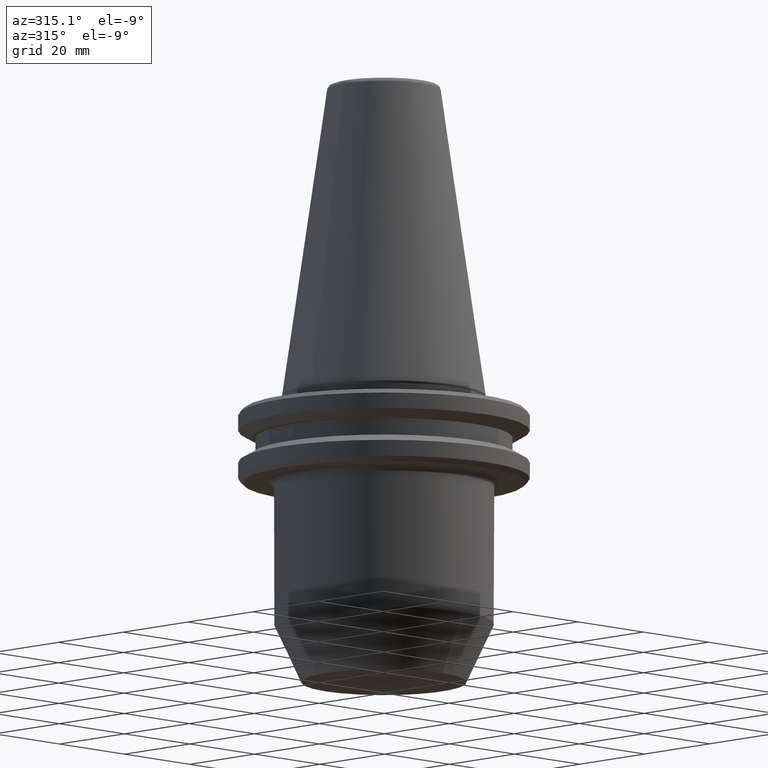
[diagram: clean part render]
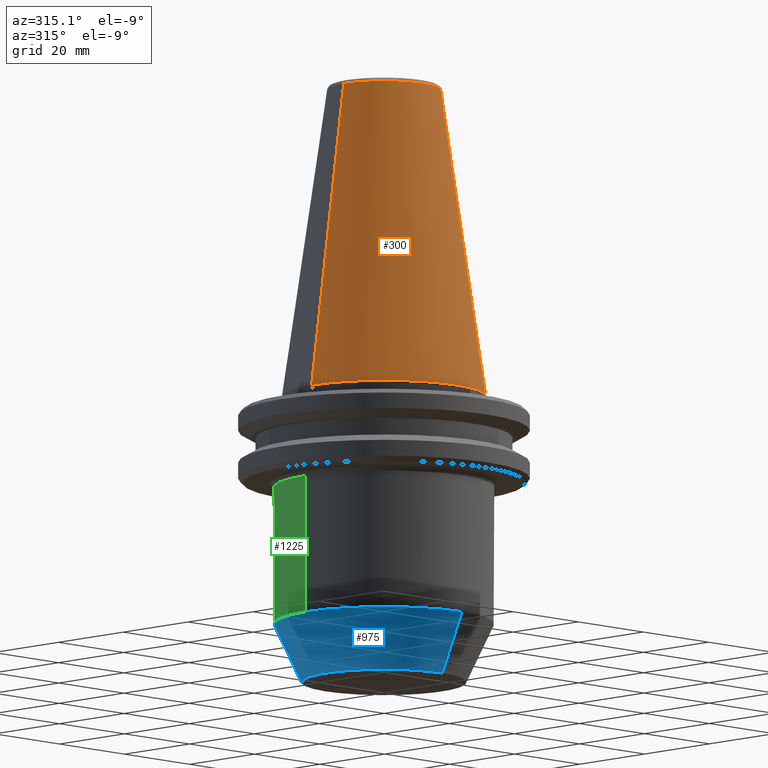
[diagram: same view with three faces highlighted in distinct colors, each labeled with its STEP entity id]
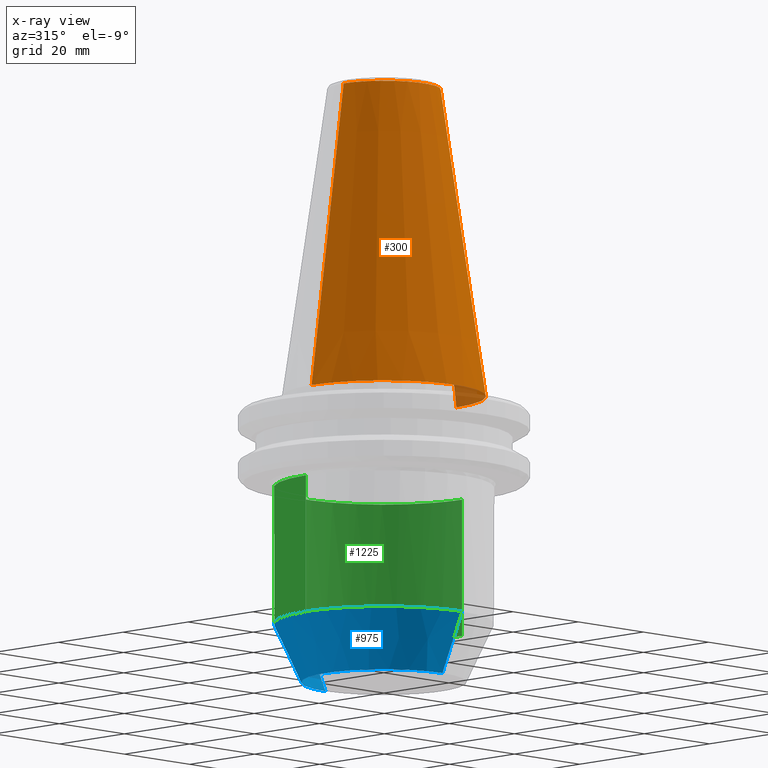
[diagram: x-ray of the same camera — body ghosted, the three highlighted faces saturated]
A machine part, auxiliary view with three faces highlighted in distinct colors.
The next image is the same camera in x-ray (body ghosted, the three faces saturated) — at least one of them is partly hidden behind the body in this view.
Their STEP definitions:

[orange] entity #300 — the highlighted conical surface has half-angle 8.297 deg.
#6 = CARTESIAN_POINT ( 'NONE',  ( 22.22500000000000100, 2.721777511104992800E-015, 0.0000000000000000000 ) ) ;
#12 = VERTEX_POINT ( 'NONE', #1183 ) ;
#39 = CARTESIAN_POINT ( 'NONE',  ( -22.22500000000000100, 0.0000000000000000000, 0.0000000000000000000 ) ) ;
#51 = ORIENTED_EDGE ( 'NONE', *, *, #715, .F. ) ;
#78 = FACE_OUTER_BOUND ( 'NONE', #559, .T. ) ;
#81 = AXIS2_PLACEMENT_3D ( 'NONE', #772, #578, #1112 ) ;
#107 = DIRECTION ( 'NONE',  ( -1.000000000000000000, 0.0000000000000000000, 6.244223985518314900E-016 ) ) ;
#160 = CARTESIAN_POINT ( 'NONE',  ( 12.37469537611110800, 2.118620309691396900E-015, 67.54430822726729400 ) ) ;
#190 = CARTESIAN_POINT ( 'NONE',  ( -22.22500000000000500, 2.721777511104993200E-015, 0.0000000000000000000 ) ) ;
#204 = ORIENTED_EDGE ( 'NONE', *, *, #1243, .T. ) ;
#230 = CARTESIAN_POINT ( 'NONE',  ( -12.37469537611110800, 0.0000000000000000000, 67.54430822726729400 ) ) ;
#294 = VECTOR ( 'NONE', #991, 1000.000000000000000 ) ;
#300 = ADVANCED_FACE ( 'NONE', ( #78 ), #805, .T. ) ;
#330 = VERTEX_POINT ( 'NONE', #230 ) ;
#387 = AXIS2_PLACEMENT_3D ( 'NONE', #708, #918, #107 ) ;
#485 = CIRCLE ( 'NONE', #1526, 12.37469537611110800 ) ;
#493 = VERTEX_POINT ( 'NONE', #160 ) ;
#559 = EDGE_LOOP ( 'NONE', ( #51, #204, #815, #1002 ) ) ;
#578 = DIRECTION ( 'NONE',  ( 0.0000000000000000000, 0.0000000000000000000, -1.000000000000000000 ) ) ;
#584 = LINE ( 'NONE', #6, #1199 ) ;
#676 = EDGE_CURVE ( 'NONE', #1398, #12, #889, .T. ) ;
#708 = CARTESIAN_POINT ( 'NONE',  ( 0.0000000000000000000, 0.0000000000000000000, 0.0000000000000000000 ) ) ;
#715 = EDGE_CURVE ( 'NONE', #493, #12, #584, .T. ) ;
#772 = CARTESIAN_POINT ( 'NONE',  ( 0.0000000000000000000, 0.0000000000000000000, 0.0000000000000000000 ) ) ;
#805 = CONICAL_SURFACE ( 'NONE', #81, 22.22500000000000100, 0.1448138465474190500 ) ;
#815 = ORIENTED_EDGE ( 'NONE', *, *, #1374, .T. ) ;
#842 = DIRECTION ( 'NONE',  ( 0.1443082272673070500, 1.767266086135363700E-017, -0.9895327864921743500 ) ) ;
#889 = CIRCLE ( 'NONE', #387, 22.22500000000000100 ) ;
#893 = DIRECTION ( 'NONE',  ( 0.0000000000000000000, 0.0000000000000000000, -1.000000000000000000 ) ) ;
#918 = DIRECTION ( 'NONE',  ( -0.0000000000000000000, -0.0000000000000000000, 1.000000000000000000 ) ) ;
#956 = CARTESIAN_POINT ( 'NONE',  ( 0.0000000000000000000, 0.0000000000000000000, 67.54430822726729400 ) ) ;
#991 = DIRECTION ( 'NONE',  ( -0.1443082272673070500, 0.0000000000000000000, -0.9895327864921743500 ) ) ;
#1002 = ORIENTED_EDGE ( 'NONE', *, *, #676, .T. ) ;
#1112 = DIRECTION ( 'NONE',  ( -1.000000000000000000, 0.0000000000000000000, 0.0000000000000000000 ) ) ;
#1183 = CARTESIAN_POINT ( 'NONE',  ( 22.22500000000000500, 0.0000000000000000000, 0.0000000000000000000 ) ) ;
#1199 = VECTOR ( 'NONE', #842, 1000.000000000000000 ) ;
#1239 = DIRECTION ( 'NONE',  ( -1.000000000000000000, 0.0000000000000000000, 0.0000000000000000000 ) ) ;
#1243 = EDGE_CURVE ( 'NONE', #493, #330, #485, .T. ) ;
#1374 = EDGE_CURVE ( 'NONE', #330, #1398, #1579, .T. ) ;
#1398 = VERTEX_POINT ( 'NONE', #190 ) ;
#1526 = AXIS2_PLACEMENT_3D ( 'NONE', #956, #893, #1239 ) ;
#1579 = LINE ( 'NONE', #39, #294 ) ;

[blue] entity #975 — the highlighted conical surface has half-angle 25 deg.
#17 = ORIENTED_EDGE ( 'NONE', *, *, #1436, .F. ) ;
#23 = EDGE_CURVE ( 'NONE', #1286, #1153, #1443, .T. ) ;
#58 = FACE_OUTER_BOUND ( 'NONE', #275, .T. ) ;
#90 = DIRECTION ( 'NONE',  ( 5.175581015019573700E-017, 0.4226182617406923900, 0.9063077870366532700 ) ) ;
#118 = CARTESIAN_POINT ( 'NONE',  ( 0.0000000000000000000, -17.99999999999999300, -63.00000000000000000 ) ) ;
#161 = DIRECTION ( 'NONE',  ( 0.0000000000000000000, -1.445602896647339200E-016, 1.000000000000000000 ) ) ;
#195 = CIRCLE ( 'NONE', #694, 24.00000000000000000 ) ;
#216 = VECTOR ( 'NONE', #305, 1000.000000000000200 ) ;
#275 = EDGE_LOOP ( 'NONE', ( #17, #935, #1067, #856, #700 ) ) ;
#305 = DIRECTION ( 'NONE',  ( 0.0000000000000000000, -0.4226182617406926100, 0.9063077870366530500 ) ) ;
#345 = DIRECTION ( 'NONE',  ( 0.0000000000000000000, 0.0000000000000000000, 1.000000000000000000 ) ) ;
#347 = DIRECTION ( 'NONE',  ( 1.000000000000000000, 0.0000000000000000000, 0.0000000000000000000 ) ) ;
#353 = EDGE_CURVE ( 'NONE', #1193, #1153, #195, .T. ) ;
#359 = CARTESIAN_POINT ( 'NONE',  ( 0.0000000000000000000, 0.0000000000000000000, -50.13295847694237800 ) ) ;
#360 = CARTESIAN_POINT ( 'NONE',  ( 0.0000000000000000000, 0.0000000000000000000, -50.13295847694237800 ) ) ;
#377 = CIRCLE ( 'NONE', #819, 24.00000000000000000 ) ;
#398 = CARTESIAN_POINT ( 'NONE',  ( -24.00000000000000000, 2.939152317953647900E-015, -50.13295847694237800 ) ) ;
#410 = CARTESIAN_POINT ( 'NONE',  ( 2.939152317953647900E-015, 24.00000000000000000, -50.13295847694237800 ) ) ;
#477 = DIRECTION ( 'NONE',  ( 0.0000000000000000000, -1.445602896647339200E-016, 1.000000000000000000 ) ) ;
#547 = AXIS2_PLACEMENT_3D ( 'NONE', #360, #477, #1175 ) ;
#586 = EDGE_CURVE ( 'NONE', #1299, #1193, #377, .T. ) ;
#671 = CARTESIAN_POINT ( 'NONE',  ( 0.0000000000000000000, -24.00000000000000000, -50.13295847694237800 ) ) ;
#694 = AXIS2_PLACEMENT_3D ( 'NONE', #359, #345, #347 ) ;
#700 = ORIENTED_EDGE ( 'NONE', *, *, #586, .F. ) ;
#724 = DIRECTION ( 'NONE',  ( 1.000000000000000000, 0.0000000000000000000, 0.0000000000000000000 ) ) ;
#759 = VERTEX_POINT ( 'NONE', #1014 ) ;
#819 = AXIS2_PLACEMENT_3D ( 'NONE', #1562, #1209, #724 ) ;
#856 = ORIENTED_EDGE ( 'NONE', *, *, #353, .F. ) ;
#885 = CARTESIAN_POINT ( 'NONE',  ( 0.0000000000000000000, 1.860063249701368700E-015, -63.00000000000000000 ) ) ;
#935 = ORIENTED_EDGE ( 'NONE', *, *, #1312, .T. ) ;
#960 = CARTESIAN_POINT ( 'NONE',  ( 0.0000000000000000000, -24.00000000000000000, -50.13295847694237800 ) ) ;
#975 = ADVANCED_FACE ( 'NONE', ( #58 ), #1563, .T. ) ;
#997 = DIRECTION ( 'NONE',  ( 0.0000000000000000000, -1.000000000000000000, 0.0000000000000000000 ) ) ;
#1014 = CARTESIAN_POINT ( 'NONE',  ( 2.571758278209441300E-015, 18.00000000000000000, -63.00000000000000000 ) ) ;
#1067 = ORIENTED_EDGE ( 'NONE', *, *, #23, .T. ) ;
#1127 = AXIS2_PLACEMENT_3D ( 'NONE', #885, #161, #997 ) ;
#1151 = LINE ( 'NONE', #1281, #1534 ) ;
#1153 = VERTEX_POINT ( 'NONE', #960 ) ;
#1175 = DIRECTION ( 'NONE',  ( 0.0000000000000000000, -1.000000000000000000, 0.0000000000000000000 ) ) ;
#1193 = VERTEX_POINT ( 'NONE', #398 ) ;
#1209 = DIRECTION ( 'NONE',  ( 0.0000000000000000000, 0.0000000000000000000, 1.000000000000000000 ) ) ;
#1231 = CIRCLE ( 'NONE', #1127, 17.99999999999999600 ) ;
#1281 = CARTESIAN_POINT ( 'NONE',  ( 2.939152317953647900E-015, 24.00000000000000000, -50.13295847694237800 ) ) ;
#1286 = VERTEX_POINT ( 'NONE', #118 ) ;
#1299 = VERTEX_POINT ( 'NONE', #410 ) ;
#1312 = EDGE_CURVE ( 'NONE', #759, #1286, #1231, .T. ) ;
#1436 = EDGE_CURVE ( 'NONE', #759, #1299, #1151, .T. ) ;
#1443 = LINE ( 'NONE', #671, #216 ) ;
#1534 = VECTOR ( 'NONE', #90, 1000.000000000000000 ) ;
#1562 = CARTESIAN_POINT ( 'NONE',  ( 0.0000000000000000000, 0.0000000000000000000, -50.13295847694237800 ) ) ;
#1563 = CONICAL_SURFACE ( 'NONE', #547, 24.00000000000000000, 0.4363323129985748300 ) ;

[green] entity #1225 — the highlighted cylindrical surface (partial cylindrical patch) has radius 24 mm, axis along (0, 0, 1).
#53 = EDGE_CURVE ( 'NONE', #1148, #1299, #1491, .T. ) ;
#73 = EDGE_LOOP ( 'NONE', ( #1136, #716, #1549, #987, #1196, #596 ) ) ;
#75 = EDGE_CURVE ( 'NONE', #1193, #666, #1205, .T. ) ;
#148 = CYLINDRICAL_SURFACE ( 'NONE', #415, 24.00000000000000000 ) ;
#246 = CARTESIAN_POINT ( 'NONE',  ( 0.0000000000000000000, 0.0000000000000000000, 82.95681253582424100 ) ) ;
#280 = DIRECTION ( 'NONE',  ( -1.000000000000000000, 0.0000000000000000000, 0.0000000000000000000 ) ) ;
#299 = VECTOR ( 'NONE', #925, 1000.000000000000000 ) ;
#304 = DIRECTION ( 'NONE',  ( 0.0000000000000000000, 0.0000000000000000000, 1.000000000000000000 ) ) ;
#341 = CARTESIAN_POINT ( 'NONE',  ( 24.00000000000000000, 0.0000000000000000000, -20.10000000000000900 ) ) ;
#376 = DIRECTION ( 'NONE',  ( -0.0000000000000000000, -0.0000000000000000000, -1.000000000000000000 ) ) ;
#377 = CIRCLE ( 'NONE', #819, 24.00000000000000000 ) ;
#398 = CARTESIAN_POINT ( 'NONE',  ( -24.00000000000000000, 2.939152317953647900E-015, -50.13295847694237800 ) ) ;
#410 = CARTESIAN_POINT ( 'NONE',  ( 2.939152317953647900E-015, 24.00000000000000000, -50.13295847694237800 ) ) ;
#415 = AXIS2_PLACEMENT_3D ( 'NONE', #246, #1356, #961 ) ;
#462 = AXIS2_PLACEMENT_3D ( 'NONE', #1042, #304, #487 ) ;
#487 = DIRECTION ( 'NONE',  ( 1.000000000000000000, 0.0000000000000000000, 0.0000000000000000000 ) ) ;
#548 = CARTESIAN_POINT ( 'NONE',  ( 24.00000000000000000, 0.0000000000000000000, 82.95681253582424100 ) ) ;
#586 = EDGE_CURVE ( 'NONE', #1299, #1193, #377, .T. ) ;
#596 = ORIENTED_EDGE ( 'NONE', *, *, #53, .T. ) ;
#602 = CIRCLE ( 'NONE', #1432, 24.00000000000000000 ) ;
#626 = EDGE_CURVE ( 'NONE', #1148, #1395, #656, .T. ) ;
#635 = EDGE_CURVE ( 'NONE', #917, #1395, #927, .T. ) ;
#656 = LINE ( 'NONE', #548, #299 ) ;
#666 = VERTEX_POINT ( 'NONE', #803 ) ;
#716 = ORIENTED_EDGE ( 'NONE', *, *, #75, .T. ) ;
#717 = CARTESIAN_POINT ( 'NONE',  ( 22.63178075185416200, 7.987646712267862300, -20.09999999999830700 ) ) ;
#724 = DIRECTION ( 'NONE',  ( 1.000000000000000000, 0.0000000000000000000, 0.0000000000000000000 ) ) ;
#730 = DIRECTION ( 'NONE',  ( 1.000000000000000000, 0.0000000000000000000, 0.0000000000000000000 ) ) ;
#786 = DIRECTION ( 'NONE',  ( 0.0000000000000000000, 0.0000000000000000000, -1.000000000000000000 ) ) ;
#803 = CARTESIAN_POINT ( 'NONE',  ( -24.00000000000000000, 2.939152317953647900E-015, -20.10000000000000900 ) ) ;
#819 = AXIS2_PLACEMENT_3D ( 'NONE', #1562, #1209, #724 ) ;
#894 = VECTOR ( 'NONE', #1000, 1000.000000000000000 ) ;
#917 = VERTEX_POINT ( 'NONE', #717 ) ;
#925 = DIRECTION ( 'NONE',  ( 0.0000000000000000000, 0.0000000000000000000, 1.000000000000000000 ) ) ;
#927 = CIRCLE ( 'NONE', #1474, 24.00000000000000000 ) ;
#961 = DIRECTION ( 'NONE',  ( 1.000000000000000000, 0.0000000000000000000, 0.0000000000000000000 ) ) ;
#987 = ORIENTED_EDGE ( 'NONE', *, *, #635, .T. ) ;
#995 = CARTESIAN_POINT ( 'NONE',  ( -24.00000000000000000, 2.939152317953647900E-015, 82.95681253582424100 ) ) ;
#1000 = DIRECTION ( 'NONE',  ( 0.0000000000000000000, 0.0000000000000000000, 1.000000000000000000 ) ) ;
#1042 = CARTESIAN_POINT ( 'NONE',  ( 0.0000000000000000000, 0.0000000000000000000, -50.13295847694237800 ) ) ;
#1051 = EDGE_CURVE ( 'NONE', #666, #917, #602, .T. ) ;
#1136 = ORIENTED_EDGE ( 'NONE', *, *, #586, .T. ) ;
#1148 = VERTEX_POINT ( 'NONE', #1547 ) ;
#1188 = CARTESIAN_POINT ( 'NONE',  ( 0.0000000000000000000, 0.0000000000000000000, -20.10000000000000900 ) ) ;
#1193 = VERTEX_POINT ( 'NONE', #398 ) ;
#1196 = ORIENTED_EDGE ( 'NONE', *, *, #626, .F. ) ;
#1205 = LINE ( 'NONE', #995, #894 ) ;
#1209 = DIRECTION ( 'NONE',  ( 0.0000000000000000000, 0.0000000000000000000, 1.000000000000000000 ) ) ;
#1225 = ADVANCED_FACE ( 'NONE', ( #1420 ), #148, .T. ) ;
#1263 = CARTESIAN_POINT ( 'NONE',  ( 0.0000000000000000000, 0.0000000000000000000, -20.10000000000000900 ) ) ;
#1299 = VERTEX_POINT ( 'NONE', #410 ) ;
#1356 = DIRECTION ( 'NONE',  ( 0.0000000000000000000, 0.0000000000000000000, 1.000000000000000000 ) ) ;
#1395 = VERTEX_POINT ( 'NONE', #341 ) ;
#1420 = FACE_OUTER_BOUND ( 'NONE', #73, .T. ) ;
#1432 = AXIS2_PLACEMENT_3D ( 'NONE', #1188, #376, #730 ) ;
#1474 = AXIS2_PLACEMENT_3D ( 'NONE', #1263, #786, #280 ) ;
#1491 = CIRCLE ( 'NONE', #462, 24.00000000000000000 ) ;
#1547 = CARTESIAN_POINT ( 'NONE',  ( 24.00000000000000000, 0.0000000000000000000, -50.13295847694237800 ) ) ;
#1549 = ORIENTED_EDGE ( 'NONE', *, *, #1051, .T. ) ;
#1562 = CARTESIAN_POINT ( 'NONE',  ( 0.0000000000000000000, 0.0000000000000000000, -50.13295847694237800 ) ) ;